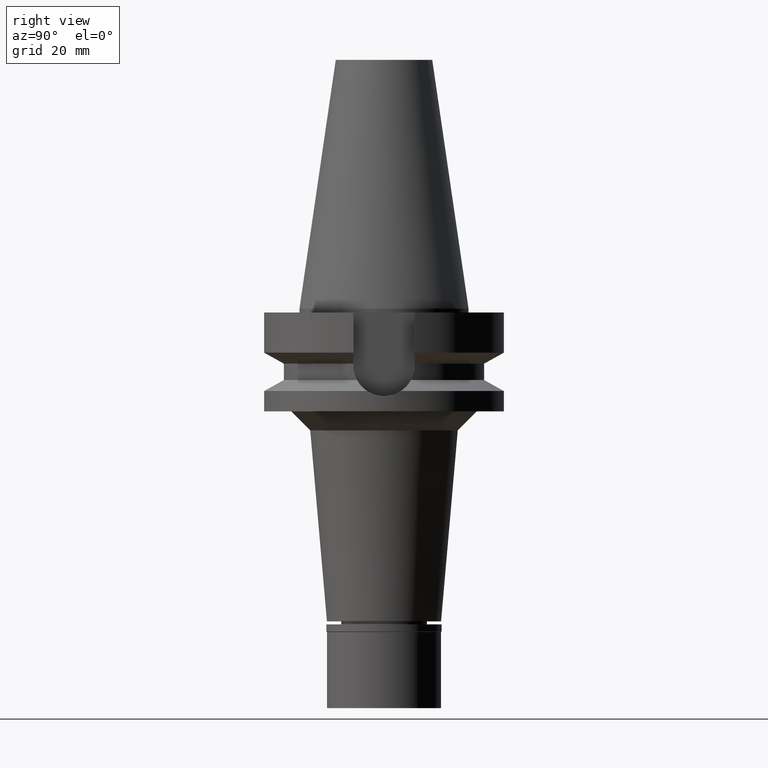
[diagram: clean part render]
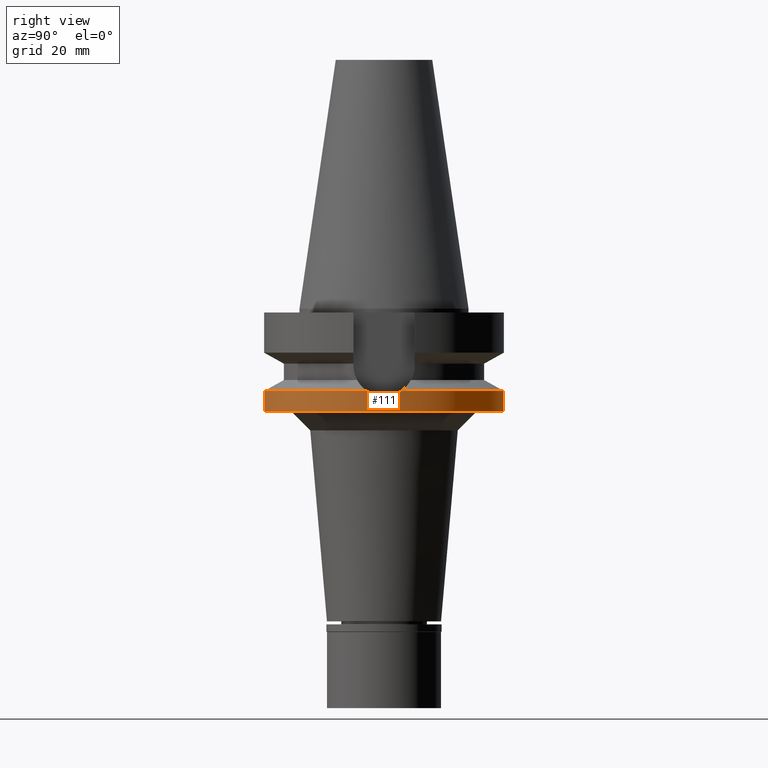
[diagram: same view with one face highlighted and labeled with its STEP entity id]
A machine part, right view. The second image highlights one B-rep face of the part: STEP entity #111.
In plain terms, the highlighted cylindrical surface (partial cylindrical patch) has radius 31.5 mm, axis along (0, 0, -1).
Its self-contained STEP definition (entity closure, byte-faithful):
#53 = CARTESIAN_POINT ( 'NONE',  ( 31.41519654756639568, 2.308329250097893581, -22.66195675239495699 ) ) ;
#57 = ORIENTED_EDGE ( 'NONE', *, *, #1845, .T. ) ;
#70 = CARTESIAN_POINT ( 'NONE',  ( 31.50000030226999570, 4.149986401503999830E-14, -23.00000138148999795 ) ) ;
#96 = CARTESIAN_POINT ( 'NONE',  ( 31.41250465254752910, -2.344685119767524029, -22.65098129005167849 ) ) ;
#98 = VERTEX_POINT ( 'NONE', #731 ) ;
#100 = CARTESIAN_POINT ( 'NONE',  ( 31.28511117664742969, 3.747948078124208049, -22.12944254164047564 ) ) ;
#111 = ADVANCED_FACE ( 'NONE', ( #2925 ), #2196, .T. ) ;
#116 = CARTESIAN_POINT ( 'NONE',  ( 31.42563404118526549, 2.162357063185814887, -22.70443063270441897 ) ) ;
#159 = VECTOR ( 'NONE', #2718, 1000.000000000000000 ) ;
#162 = DIRECTION ( 'NONE',  ( 0.0000000000000000000, 1.099151708819000049E-13, -1.000000000000000000 ) ) ;
#168 = AXIS2_PLACEMENT_3D ( 'NONE', #2298, #2812, #1080 ) ;
#198 = CARTESIAN_POINT ( 'NONE',  ( 0.0000000000000000000, -31.50000000000000000, -21.63449434733000132 ) ) ;
#201 = EDGE_CURVE ( 'NONE', #2206, #1711, #1942, .T. ) ;
#337 = CARTESIAN_POINT ( 'NONE',  ( 31.35450367999056809, -3.025551444408663748, -22.41216023105940991 ) ) ;
#354 = CARTESIAN_POINT ( 'NONE',  ( 31.50000030226999570, 4.149986401503999830E-14, -23.00000138148999795 ) ) ;
#466 = LINE ( 'NONE', #198, #159 ) ;
#499 = EDGE_CURVE ( 'NONE', #675, #964, #2602, .T. ) ;
#536 = CARTESIAN_POINT ( 'NONE',  ( 31.17899877608999759, 4.485536235554000051, -21.63449434733000132 ) ) ;
#549 = CARTESIAN_POINT ( 'NONE',  ( 31.17899877608999759, -4.485536235554000051, -21.63449434733000132 ) ) ;
#554 = CARTESIAN_POINT ( 'NONE',  ( 31.49278356123977929, 0.7711873031710440030, -22.97267690006522400 ) ) ;
#569 = CARTESIAN_POINT ( 'NONE',  ( 31.46211241186140128, 1.552211430364588640, -22.85146869861923236 ) ) ;
#602 = CARTESIAN_POINT ( 'NONE',  ( 31.50000030227000636, -0.7652255575728066361, -23.00000000000000711 ) ) ;
#608 = AXIS2_PLACEMENT_3D ( 'NONE', #2259, #1297, #1369 ) ;
#609 = AXIS2_PLACEMENT_3D ( 'NONE', #769, #1737, #2910 ) ;
#614 = AXIS2_PLACEMENT_3D ( 'NONE', #2233, #1243, #972 ) ;
#675 = VERTEX_POINT ( 'NONE', #1705 ) ;
#731 = CARTESIAN_POINT ( 'NONE',  ( 31.17899877608999759, -4.485536235554000051, -21.63449434733000132 ) ) ;
#769 = CARTESIAN_POINT ( 'NONE',  ( 0.0000000000000000000, 2.125803146300000032E-14, 73.58499999999999375 ) ) ;
#835 = CARTESIAN_POINT ( 'NONE',  ( 31.40782472142095827, -2.406637570808294768, -22.63189169567762704 ) ) ;
#840 = CARTESIAN_POINT ( 'NONE',  ( 31.43707934141286842, 1.991785373593337960, -22.75083980001243589 ) ) ;
#915 = VERTEX_POINT ( 'NONE', #2360 ) ;
#964 = VERTEX_POINT ( 'NONE', #2950 ) ;
#972 = DIRECTION ( 'NONE',  ( 0.0000000000000000000, -1.000000000000000000, 0.0000000000000000000 ) ) ;
#1074 = CARTESIAN_POINT ( 'NONE',  ( 31.47113333814916558, 1.356640495464844109, -22.88731189956133960 ) ) ;
#1080 = DIRECTION ( 'NONE',  ( 0.9898094849552905306, -0.1423979757318985240, 0.0000000000000000000 ) ) ;
#1084 = CARTESIAN_POINT ( 'NONE',  ( 31.47113575803166796, -1.554964651851641122, -22.89006402801781093 ) ) ;
#1090 = CARTESIAN_POINT ( 'NONE',  ( 31.41418307691772682, 2.322078179488806793, -22.65782554032157137 ) ) ;
#1117 = CARTESIAN_POINT ( 'NONE',  ( 31.33671814113429122, -3.204274407606030550, -22.33747821317260573 ) ) ;
#1243 = DIRECTION ( 'NONE',  ( 0.0000000000000000000, 0.0000000000000000000, 1.000000000000000000 ) ) ;
#1281 = CARTESIAN_POINT ( 'NONE',  ( 31.41697254242929205, 2.284015593780573727, -22.66919255136408395 ) ) ;
#1286 = CARTESIAN_POINT ( 'NONE',  ( 31.17899877608999759, 4.485536235554000051, -21.63449434733000132 ) ) ;
#1297 = DIRECTION ( 'NONE',  ( 0.0000000000000000000, 0.0000000000000000000, -1.000000000000000000 ) ) ;
#1309 = CARTESIAN_POINT ( 'NONE',  ( 31.23205437646064198, -4.116746326781118626, -21.88196564630578678 ) ) ;
#1349 = ORIENTED_EDGE ( 'NONE', *, *, #201, .F. ) ;
#1368 = B_SPLINE_CURVE_WITH_KNOTS ( 'NONE', 3,
 ( #549, #1309, #1831, #1117, #337, #2271, #3000, #1797, #835, #2801, #2767, #96, #1084, #602, #354 ),
 .UNSPECIFIED., .F., .F.,
 ( 4, 2, 2, 1, 1, 1, 2, 2, 4 ),
 ( 0.0000000000000000000, 0.2500000000000082712, 0.3750000000000119349, 0.4375000000000139888, 0.4687500000000150990, 0.4843750000000152101, 0.4921875000000149880, 0.5000000000000147660, 1.000000000000000000 ),
 .UNSPECIFIED. ) ;
#1369 = DIRECTION ( 'NONE',  ( 0.0000000000000000000, 1.000000000000000000, 0.0000000000000000000 ) ) ;
#1461 = ORIENTED_EDGE ( 'NONE', *, *, #499, .T. ) ;
#1564 = ORIENTED_EDGE ( 'NONE', *, *, #2476, .T. ) ;
#1603 = LINE ( 'NONE', #2572, #2689 ) ;
#1625 = ORIENTED_EDGE ( 'NONE', *, *, #3023, .F. ) ;
#1645 = VERTEX_POINT ( 'NONE', #2237 ) ;
#1705 = CARTESIAN_POINT ( 'NONE',  ( 0.0000000000000000000, -31.50000000000000000, -27.00000000000000000 ) ) ;
#1711 = VERTEX_POINT ( 'NONE', #1286 ) ;
#1737 = DIRECTION ( 'NONE',  ( 0.0000000000000000000, 0.0000000000000000000, -1.000000000000000000 ) ) ;
#1754 = CARTESIAN_POINT ( 'NONE',  ( 31.41961539192766040, 2.247536052661643691, -22.67995511561548838 ) ) ;
#1794 = ORIENTED_EDGE ( 'NONE', *, *, #2770, .T. ) ;
#1797 = CARTESIAN_POINT ( 'NONE',  ( 31.40205153632035717, -2.481143929229181921, -22.60832449609155148 ) ) ;
#1805 = CARTESIAN_POINT ( 'NONE',  ( 31.36324472125325613, 3.008186402923568981, -22.45010119757649392 ) ) ;
#1831 = CARTESIAN_POINT ( 'NONE',  ( 31.27811616776804371, -3.746663410109808190, -22.08609477296228008 ) ) ;
#1845 = EDGE_CURVE ( 'NONE', #98, #915, #2823, .T. ) ;
#1942 = B_SPLINE_CURVE_WITH_KNOTS ( 'NONE', 3,
 ( #70, #2291, #554, #1074, #569, #2043, #840, #116, #1754, #1281, #53, #1090, #1805, #100, #536 ),
 .UNSPECIFIED., .F., .F.,
 ( 4, 2, 2, 1, 1, 1, 2, 2, 4 ),
 ( 0.0000000000000000000, 0.2500000000000036637, 0.3750000000000054401, 0.4375000000000063283, 0.4687500000000066613, 0.4843750000000069389, 0.4921875000000072164, 0.5000000000000074385, 1.000000000000000000 ),
 .UNSPECIFIED. ) ;
#2043 = CARTESIAN_POINT ( 'NONE',  ( 31.44587474454343123, 1.845305156204674057, -22.78628520795651013 ) ) ;
#2147 = ORIENTED_EDGE ( 'NONE', *, *, #2577, .F. ) ;
#2196 = CYLINDRICAL_SURFACE ( 'NONE', #609, 31.50000000000000000 ) ;
#2206 = VERTEX_POINT ( 'NONE', #2454 ) ;
#2233 = CARTESIAN_POINT ( 'NONE',  ( 0.0000000000000000000, 2.125803146300000032E-14, -27.00000000000000000 ) ) ;
#2237 = CARTESIAN_POINT ( 'NONE',  ( 0.0000000000000000000, 31.50000000000000000, -21.63449434733000132 ) ) ;
#2259 = CARTESIAN_POINT ( 'NONE',  ( 0.0000000000000000000, 0.0000000000000000000, -21.63449434733000132 ) ) ;
#2271 = CARTESIAN_POINT ( 'NONE',  ( 31.37855930987626252, -2.761990093459803397, -22.51192666837109257 ) ) ;
#2291 = CARTESIAN_POINT ( 'NONE',  ( 31.50000030226998859, 0.3826090915251830205, -23.00000000000000000 ) ) ;
#2298 = CARTESIAN_POINT ( 'NONE',  ( 0.0000000000000000000, 0.0000000000000000000, -21.63449434733000132 ) ) ;
#2360 = CARTESIAN_POINT ( 'NONE',  ( 0.0000000000000000000, -31.50000000000000000, -21.63449434733000132 ) ) ;
#2454 = CARTESIAN_POINT ( 'NONE',  ( 31.50000030226999570, 4.149986401503999830E-14, -23.00000138148999795 ) ) ;
#2476 = EDGE_CURVE ( 'NONE', #1645, #1711, #3100, .T. ) ;
#2572 = CARTESIAN_POINT ( 'NONE',  ( 0.0000000000000000000, 31.50000000000000000, -21.63449434733000132 ) ) ;
#2577 = EDGE_CURVE ( 'NONE', #1645, #964, #1603, .T. ) ;
#2602 = CIRCLE ( 'NONE', #614, 31.50000000000000000 ) ;
#2689 = VECTOR ( 'NONE', #162, 1000.000000000000000 ) ;
#2718 = DIRECTION ( 'NONE',  ( 0.0000000000000000000, -1.105773104655000034E-13, -1.000000000000000000 ) ) ;
#2767 = CARTESIAN_POINT ( 'NONE',  ( 31.41183231690596855, -2.353663757155681768, -22.64823938059620545 ) ) ;
#2770 = EDGE_CURVE ( 'NONE', #915, #675, #466, .T. ) ;
#2801 = CARTESIAN_POINT ( 'NONE',  ( 31.41023747458196524, -2.374835805101922048, -22.64173436498663605 ) ) ;
#2812 = DIRECTION ( 'NONE',  ( 0.0000000000000000000, 0.0000000000000000000, -1.000000000000000000 ) ) ;
#2823 = CIRCLE ( 'NONE', #168, 31.50000000000001421 ) ;
#2910 = DIRECTION ( 'NONE',  ( 0.0000000000000000000, -1.000000000000000000, 0.0000000000000000000 ) ) ;
#2925 = FACE_OUTER_BOUND ( 'NONE', #3105, .T. ) ;
#2950 = CARTESIAN_POINT ( 'NONE',  ( 0.0000000000000000000, 31.50000000000000000, -27.00000000000000000 ) ) ;
#3000 = CARTESIAN_POINT ( 'NONE',  ( 31.38993145521942196, -2.631335983111909194, -22.55874663190329699 ) ) ;
#3023 = EDGE_CURVE ( 'NONE', #98, #2206, #1368, .T. ) ;
#3100 = CIRCLE ( 'NONE', #608, 31.50000000000000000 ) ;
#3105 = EDGE_LOOP ( 'NONE', ( #57, #1794, #1461, #2147, #1564, #1349, #1625 ) ) ;